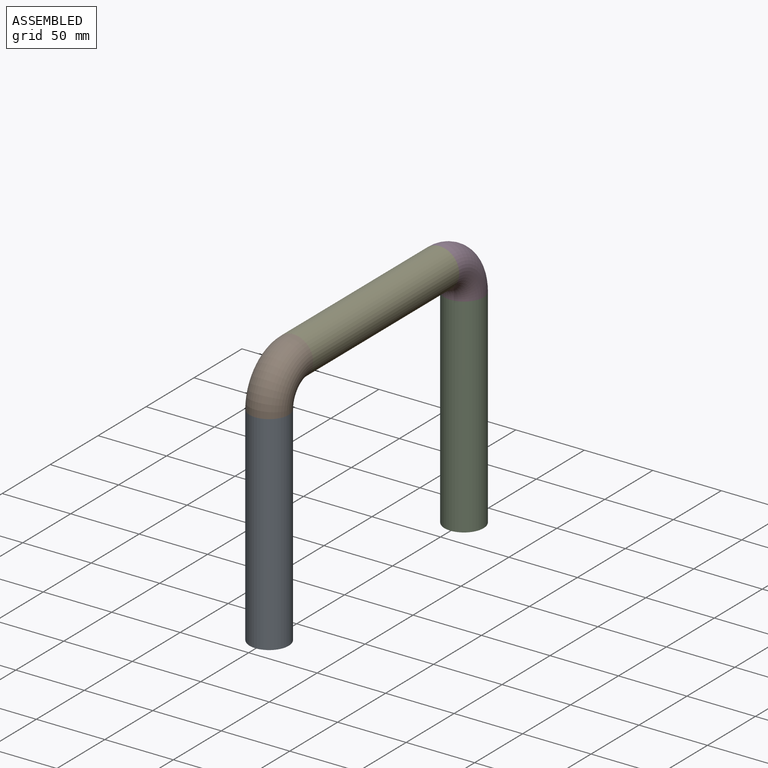
[diagram: assembled view]
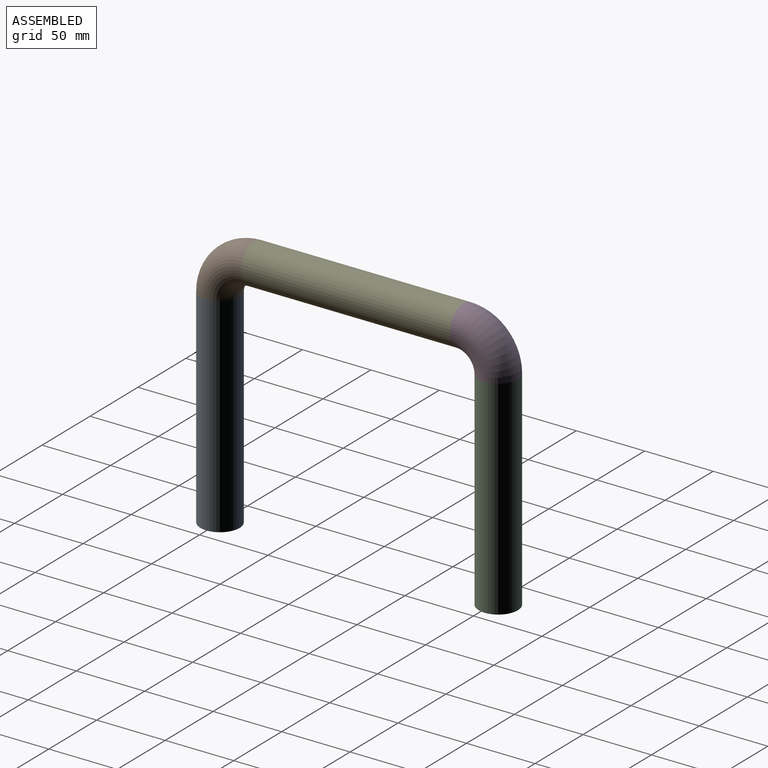
[diagram: assembled view, second angle]
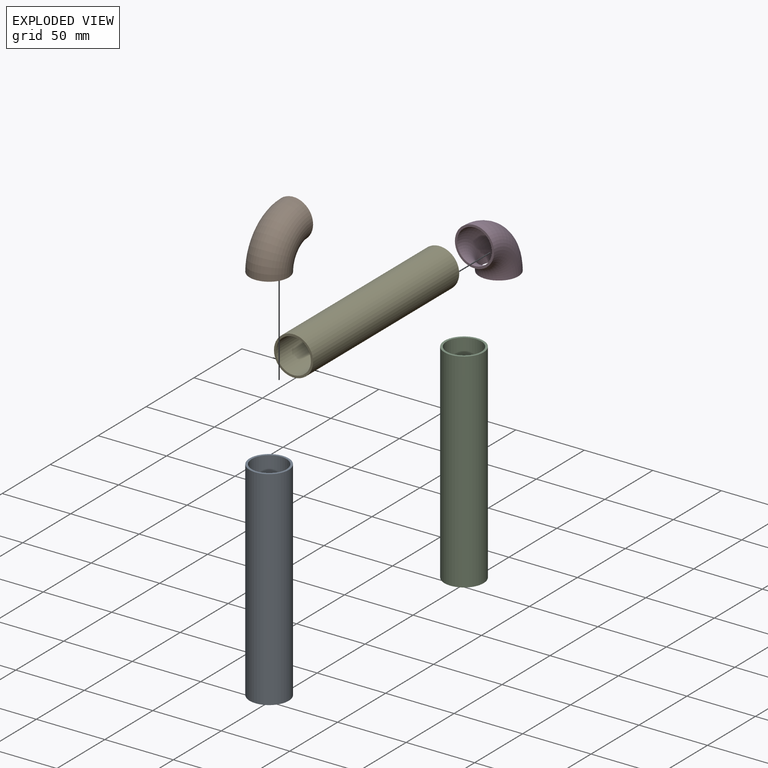
[diagram: exploded view]
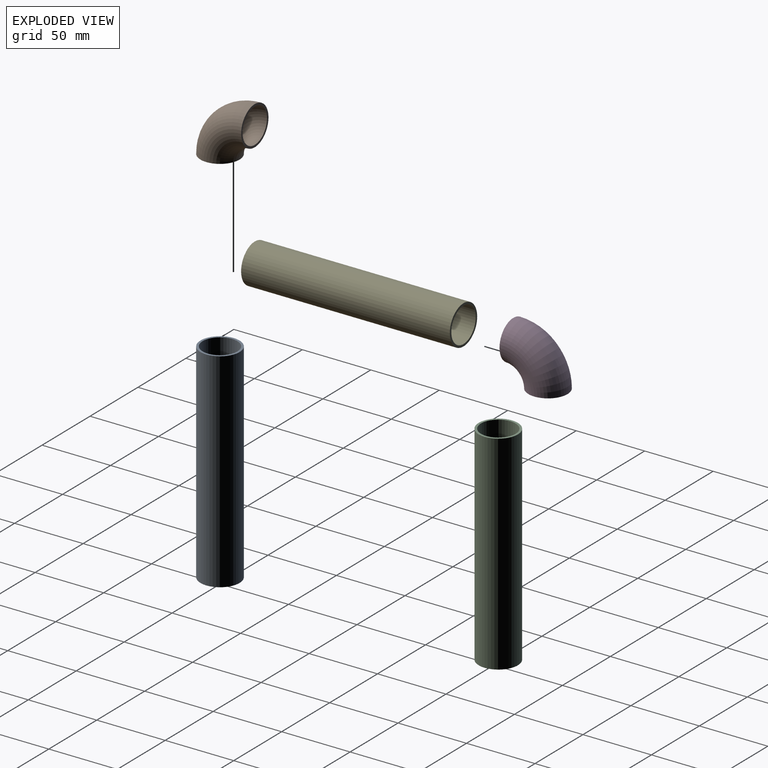
[diagram: exploded view, second angle]
ASSEMBLY  parts=5 mates=4
PART A: 4 faces, bbox 28.6x28.6x152.4 mm
  f0: cylinder r=12.7mm len=152.4mm, axis (0,0,-1), area 12161mm2, adj f2,f3
  f1: cylinder r=14.29mm len=152.4mm, axis (0,0,-1), area 13681.1mm2, adj f2,f3
  f2: plane 28.58x28.58mm, normal (0,0,1), area 134.6mm2, adj f0,f1
  f3: plane 28.58x28.58mm, normal (0,0,-1), area 134.6mm2, adj f0,f1
PART B: 4 faces, bbox 28.6x43x43 mm
  f0: torus R=25.4mm, axis (-1,0,0), area 3183.7mm2, adj f1,f2
  f1: plane 28.58x28.58mm, normal (0,0,-1), area 134.6mm2, adj f0,f3
  f2: plane 28.58x28.58mm, normal (0,1,0), area 134.6mm2, adj f0,f3
  f3: torus R=25.4mm, axis (-1,0,0), area 3581.7mm2, adj f1,f2
PART C: same geometry as A
PART D: same geometry as B
PART E: same geometry as A
PLACE A at identity fixed
PLACE B t=(0,0,152.4)mm
PLACE C t=(0,203.2,0)mm
PLACE D rot(axis=(-1,0,0),90deg) t=(0,177.8,177.8)mm
PLACE E rot(axis=(1,0,0),90deg) t=(0,177.8,177.8)mm
MATE fastened D.f1 <-> E.f0  axis (0,-1,0) through (0,177.8,177.8)mm
MATE fastened B.f1 <-> A.f0  axis (0,0,-1) through (0,0,152.4)mm
MATE fastened B.f2 <-> E.f0  axis (0,1,0) through (0,25.4,177.8)mm
MATE fastened D.f2 <-> C.f0  axis (0,0,-1) through (0,203.2,152.4)mm
